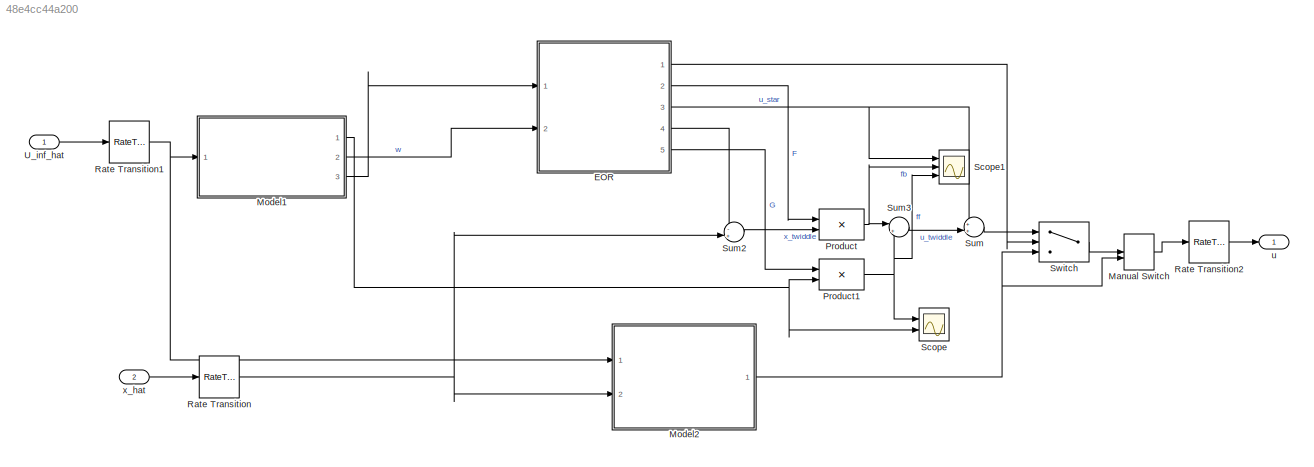
MODEL slx_48e4cc44a200
KIND model
CONFIG AbsTol = auto
CONFIG EnableMultiTasking = off
CONFIG FixedStep = DT
CONFIG MaxStep = auto
CONFIG MinStep = auto
CONFIG RelTol = 1e-3
CONFIG SampleTimeConstraint = Unconstrained
CONFIG Solver = FixedStepAuto
CONFIG SolverName = FixedStepAuto
CONFIG StartTime = 0.0
CONFIG StopTime = 10.0
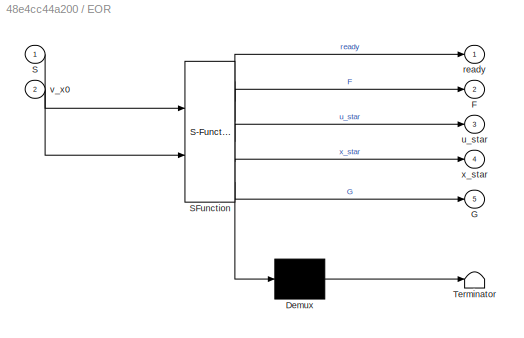
BLOCK [SubSystem] EOR
  ErrorFcn = Stateflow.Translate.translate
  PermitHierarchicalResolution = ExplicitOnly
  Ports = [2, 5]
  RequestExecContextInheritance = off
  SFBlockType = Chart
  SystemSampleTime = T_s
  TreatAsAtomicUnit = on
BLOCK [Demux] EOR/ Demux 
  Outputs = 1
  Ports = [1, 1]
BLOCK [S-Function] EOR/ SFunction 
  EnableBusSupport = on
  FunctionName = sf_sfun
  Parameters = N_w,T_cal,T_s,tp
  PortCounts = [2 6]
  Ports = [2, 6]
  SFcnIsStateOwnerBlock = off
  SFunctionDeploymentMode = off
  Tag = Stateflow S-Function 3
BLOCK [Terminator] EOR/ Terminator 
BLOCK [Outport] EOR/F
  Port = 2
BLOCK [Outport] EOR/G
  Port = 5
BLOCK [Inport] EOR/S
BLOCK [Outport] EOR/ready
BLOCK [Outport] EOR/u_star
  Port = 3
BLOCK [Inport] EOR/v_x0
  Port = 2
BLOCK [Outport] EOR/x_star
  Port = 4
BLOCK [ManualSwitch] Manual Switch
  CurrentSetting = 0
BLOCK [ModelReference] Model1
  ModelNameDialog = Regressor.slx
  ModelReferenceVersion = 1.126
  Ports = [1, 3]
BLOCK [ModelReference] Model2
  ModelNameDialog = Baseline_Ctrl_Updated.slx
  ModelReferenceVersion = 1.25
  Ports = [2, 1]
BLOCK [Product] Product
  Multiplication = Matrix(*)
  Ports = [2, 1]
BLOCK [Product] Product1
  Multiplication = Matrix(*)
  Ports = [2, 1]
BLOCK [RateTransition] Rate Transition
  Deterministic = off
  OutPortSampleTime = T_s
BLOCK [RateTransition] Rate Transition1
  Deterministic = off
  OutPortSampleTime = T_s
BLOCK [RateTransition] Rate Transition2
  Deterministic = off
  OutPortSampleTime = DT
BLOCK [Scope] Scope
  Floating = off
  NumInputPorts = 2
  Ports = [2]
  ScopeSpecificationString = Simulink.scopes.TimeScopeBlockCfg('CurrentConfiguration', extmgr.ConfigurationSet(extmgr.Configuration('Core','General UI',true),extmgr.Configuration('Core','Source UI',true),extmgr.Configuration('Sources','WiredSimulink',true),extmgr.Configuration('Visuals','Time Domain',true,'SerializedDisplays',{struct('MinYLimReal','-2.36696','MaxYLimReal','7.01959','YLabelReal','','MinYLimMag','0.00000','MaxY...<+1397ch>
BLOCK [Scope] Scope1
  Floating = off
  NumInputPorts = 3
  Ports = [3]
  ScopeSpecificationString = Simulink.scopes.TimeScopeBlockCfg('CurrentConfiguration', extmgr.ConfigurationSet(extmgr.Configuration('Core','General UI',true),extmgr.Configuration('Core','Source UI',true),extmgr.Configuration('Sources','WiredSimulink',true,'DataLoggingVariableName','ScopeData1'),extmgr.Configuration('Visuals','Time Domain',true,'SerializedDisplays',{struct('MinYLimReal','-0.185','MaxYLimReal','0.30421','YLabel...<+1448ch>
BLOCK [Sum] Sum
  Inputs = ++|
  Ports = [2, 1]
BLOCK [Sum] Sum2
  Inputs = -+|
  Ports = [2, 1]
BLOCK [Sum] Sum3
  Inputs = |++
  Ports = [2, 1]
BLOCK [Switch] Switch
  Criteria = u2 ~= 0
  InputSameDT = off
  SaturateOnIntegerOverflow = off
BLOCK [Inport] U_inf_hat
BLOCK [Outport] u
BLOCK [Inport] x_hat
  Port = 2
  PortDimensions = 5
LINE EOR:1 -> Switch:2
LINE EOR:2 -> Product:1
NET EOR:3 -> Scope1:1, Sum:1
LINE EOR:4 -> Sum2:1
LINE EOR:5 -> Product1:1
LINE Manual Switch:1 -> Rate Transition2:1
NET Model1:1 -> Product1:2, Scope:2
LINE Model1:2 -> EOR:2
LINE Model1:3 -> EOR:1
NET Model2:1 -> Manual Switch:2, Switch:3
NET Product1:1 -> Scope1:3, Scope:1, Sum3:2
NET Product:1 -> Scope1:2, Sum3:1
NET Rate Transition1:1 -> Model1:1, Model2:1
LINE Rate Transition2:1 -> u:1
NET Rate Transition:1 -> Model2:2, Sum2:2
LINE Sum2:1 -> Product:2
LINE Sum3:1 -> Sum:2
LINE Sum:1 -> Switch:1
LINE Switch:1 -> Manual Switch:1
LINE U_inf_hat:1 -> Rate Transition1:1
LINE x_hat:1 -> Rate Transition:1
note: NET lines group one-source signal fan-out (src -> all destinations, sorted); 1:1 wires keep LINE
CHART EOR states=3 transitions=3
  STATE_LABEL 'Calibrate\nduring:\n  n = n+1;'
  STATE_LABEL 'Region_3\nentry:\n  [x_star, u_star, A3, B3, C3, H3, K3] = eq_region3(tp,v_x0, T_s);\n  F = [-K3;0 0 0 0 0];\n  E_w3(1) = H3(1);\n  D_ew3(1) = -fdiff(@(vx) interp1(tp.v_x_bp, tp.theta_v_x, vx), v_x0);\n  [Pi3, Gamma3] = eor_solve(A3, B3, E_w3, C3, 0, D_ew3, S);\n  G(1,:) = Gamma3 + K3*Pi3;\n  ready = 1;\nduring:\n  [Pi3, Gamma3] = eor_solve(A3, B3, E_w3, C3, 0, D_ew3, S);\n  G(1,:) = Gamma3 + K3*Pi3;\n'
  STATE_LABEL 'Region_2\nentry:\n  [x_star, u_star, A2, B2, C2, H2, K2] = eq_region2(tp,v_x0, T_s);\n  F = [0 0 0 0 0; -K2 0 0];\n  E_w2(1) = H2(1);\n  D_ew2(1) = -tp.lambda_star/tp.R;\n  [Pi2, Gamma2] = eor_solve(A2, B2, E_w2, C2, 0, D_ew2, S);\n  G(2,:) = Gamma2 + K2*Pi2;\n  ready = 1;\nduring:\n  [Pi2, Gamma2] = eor_solve(A2, B2, E_w2, C2, 0, D_ew2, S);\n  G(2,:) = Gamma2 + K2*Pi2;'
CHART  states=0 transitions=0
